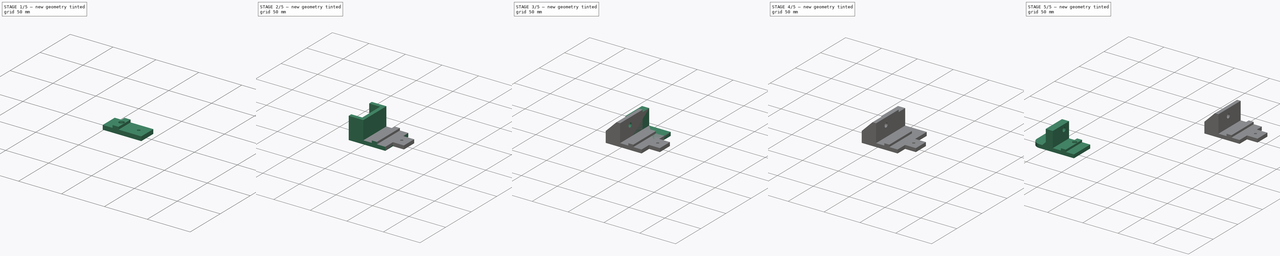
[diagram: build sequence overview — one tinted view per stage of 5, left to right]
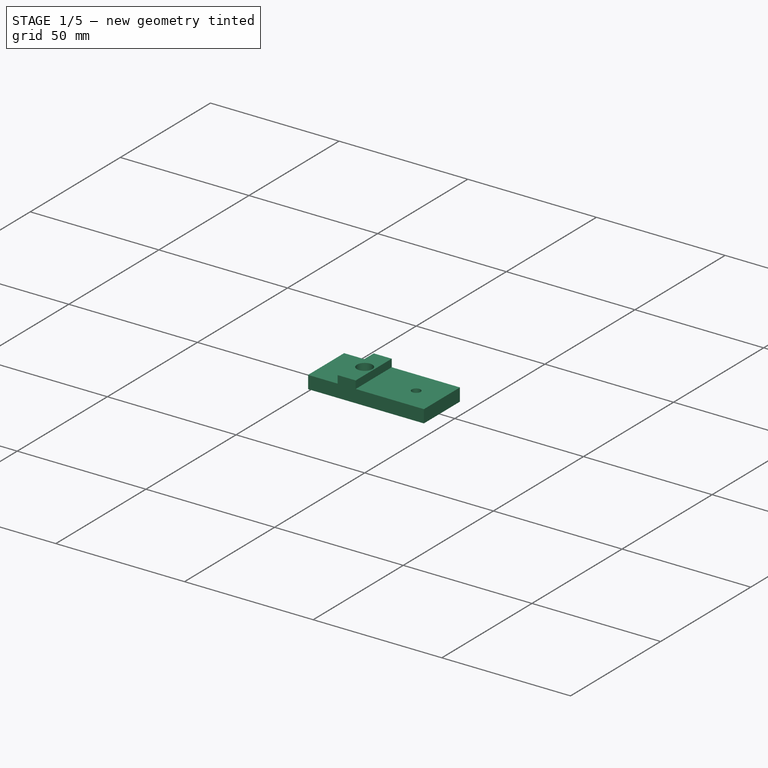
[diagram: stage 1 of 5 — iso view after this stage's code; geometry added in this stage tinted green]
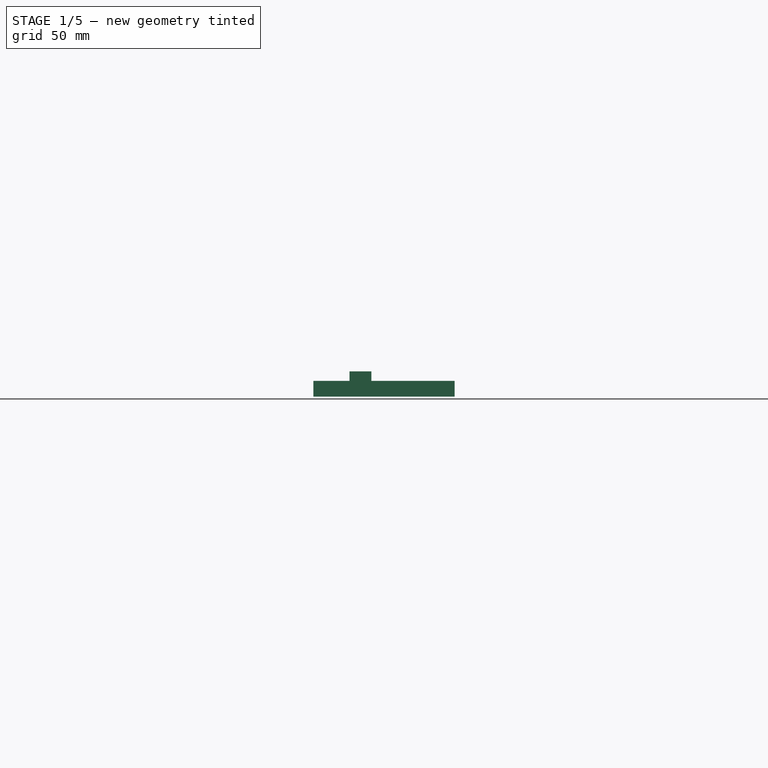
[diagram: stage 1 of 5 — front view after this stage's code; geometry added in this stage tinted green]
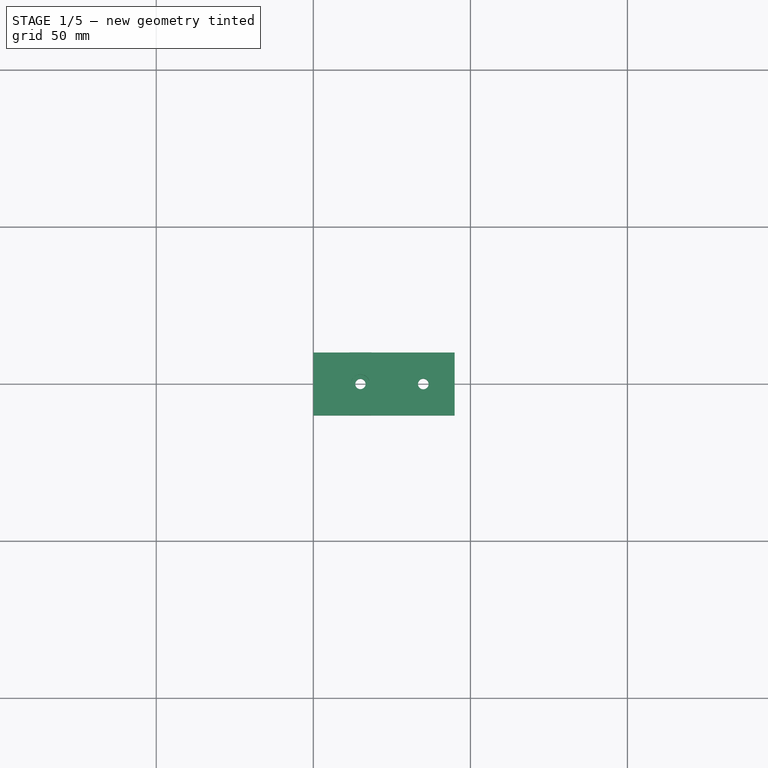
[diagram: stage 1 of 5 — top view after this stage's code; geometry added in this stage tinted green]
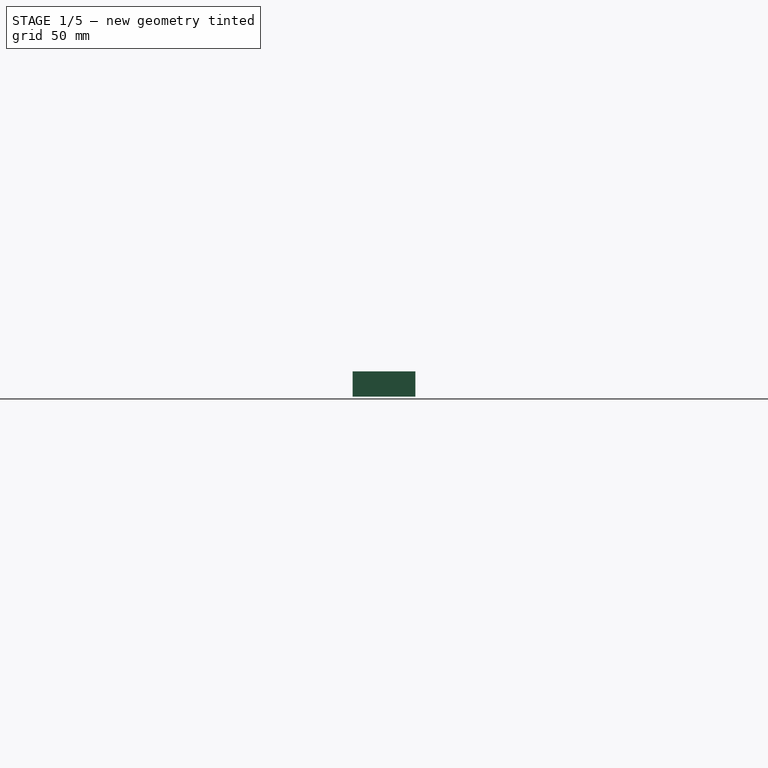
[diagram: stage 1 of 5 — right view after this stage's code; geometry added in this stage tinted green]
FCSTD DOCUMENT  (FreeCAD 0.18R)
Label: K-MINI-Enclosure-MiniBaseFixtures
License: All rights reserved
LicenseURL: http://en.wikipedia.org/wiki/All_rights_reserved
objects: Sketcher::SketchObject×12, PartDesign::Pad×8, PartDesign::Body×4, PartDesign::Pocket×2, PartDesign::Chamfer×2, PartDesign::Fillet×2, PartDesign::Hole×2, Part::Mirroring×1, PartDesign::FeatureBase×1, App::Part×1
note: 46 computed .brp shape members not serialized (recipe doc carries the construction recipe); baked Part::Feature solids carry a one-line shape summary decoded from their .brp

FEATURE [PartDesign::Body] Body037  label="MiniBaseFixtureR"
  Group = -> [Sketch024,Pad038,Sketch025,Pad039,Sketch027,Pad040,Sketch031,Pocket,Chamfer001]
  Origin = -> Origin044
  Placement = pos=(15,-55,0) rot=(0,0,1;3.14159rad)
  Tip = -> Chamfer001
FEATURE [Sketcher::SketchObject] Sketch
  MapMode = 5
  Support = -> [XY_Plane045]
  sketch-geometry (5):
    g0: LineSegment StartX=0 StartY=10 StartZ=0 EndX=45 EndY=10 EndZ=0
    g1: LineSegment StartX=45 StartY=10 StartZ=0 EndX=45 EndY=-10 EndZ=0
    g2: LineSegment StartX=45 StartY=-10 StartZ=0 EndX=0 EndY=-10 EndZ=0
    g3: LineSegment StartX=0 StartY=-10 StartZ=0 EndX=0 EndY=10 EndZ=0
    g4: Circle CenterX=35 CenterY=0 CenterZ=0 NormalX=0 NormalY=0 NormalZ=1 AngleXU=0 Radius=1.7
  constraints (14):
    c: Coincident(g0,g1)
    c: Coincident(g1,g2)
    c: Coincident(g2,g3)
    c: Coincident(g3,g0)
    c: Horizontal(g0)
    c: Horizontal(g2)
    c: Vertical(g3)
    c: PointOnObject(g4,g-1)
    c: Symmetric(g1,g0,g-1)
    c: DistanceY(g1,g1) = 20
    c: DistanceX(g0,g0) = 45
    c: Radius(g4) = 1.7
    c: DistanceX(g-1,g4) = 35
    c: PointOnObject(g0,g-2)
FEATURE [PartDesign::Pad] Pad
  Length = 5
  Length2 = 100
  Profile = -> Sketch
  Type = 0
FEATURE [Sketcher::SketchObject] Sketch032
  MapMode = 5
  Placement = pos=(0,0,5) rot=(0,0,1;0rad)
  Support = -> [Pad]
  sketch-geometry (4):
    g0: LineSegment StartX=11.5 StartY=10 StartZ=0 EndX=18.5 EndY=10 EndZ=0
    g1: LineSegment StartX=18.5 StartY=10 StartZ=0 EndX=18.5 EndY=-10 EndZ=0
    g2: LineSegment StartX=18.5 StartY=-10 StartZ=0 EndX=11.5 EndY=-10 EndZ=0
    g3: LineSegment StartX=11.5 StartY=-10 StartZ=0 EndX=11.5 EndY=10 EndZ=0
  constraints (11):
    c: Coincident(g0,g1)
    c: Coincident(g1,g2)
    c: Coincident(g2,g3)
    c: Coincident(g3,g0)
    c: Horizontal(g0)
    c: Horizontal(g2)
    c: Vertical(g1)
    c: Symmetric(g2,g0,g-1)
    c: DistanceX(g0,g0) = 7
    c: DistanceX(g-1,g0) = 11.5
    c: DistanceY(g1,g1) = 20
FEATURE [PartDesign::Pad] Pad042
  BaseFeature = -> Pad
  Length = 3
  Length2 = 100
  Profile = -> Sketch032
  Type = 0
FEATURE [Sketcher::SketchObject] Sketch033
  MapMode = 5
  Placement = pos=(0,0,8) rot=(0,0,1;0rad)
  Support = -> [Pad042]
  sketch-geometry (1):
    g0: Circle CenterX=15 CenterY=0 CenterZ=0 NormalX=0 NormalY=0 NormalZ=1 AngleXU=0 Radius=1.61617
  constraints (2):
    c: DistanceX(g-1,g0) = 15
    c: PointOnObject(g0,g-1)
FEATURE [PartDesign::Hole] Hole001
  BaseFeature = -> Pad042
  Depth = 25
  DepthType = 0
  Diameter = 3.3
  DrillPoint = 1
  DrillPointAngle = 118
  HoleCutCountersinkAngle = 90
  HoleCutDepth = 3
  HoleCutDiameter = 6
  HoleCutType = 1
  ModelActualThread = false
  Profile = -> Sketch033
  Tapered = false
  TaperedAngle = 90
  ThreadAngle = 0
  ThreadClass = 0
  ThreadCutOffInner = 0
  ThreadCutOffOuter = 0
  ThreadDirection = 0
  ThreadFit = 0
  ThreadPitch = 0
  ThreadSize = 0
  ThreadType = 0
  Threaded = false
FEATURE [PartDesign::Body] Body  label="MiniBaseFixtureFR"
  Group = -> [Sketch,Pad,Sketch032,Pad042,Sketch033,Hole001]
  Origin = -> Origin045
  Placement = pos=(15,-145,0) rot=(0,0,1;3.14159rad)
  Tip = -> Hole001
FEATURE [PartDesign::FeatureBase] Clone
  BaseFeature = -> Body
FEATURE [PartDesign::Body] Body038  label="MiniBaseFixtureRR"
  BaseFeature = -> Body
  Group = -> [Clone]
  Origin = -> Origin046
  Placement = pos=(15,70,0) rot=(0,0,1;3.14159rad)
  Tip = -> Clone
FEATURE [App::Part] Part  label="K-MINI-Enclosure-MiniBaseFixtures"
  Group = -> [Body037,Body036,Part__Mirroring,Body,Body038]
  Origin = -> Origin
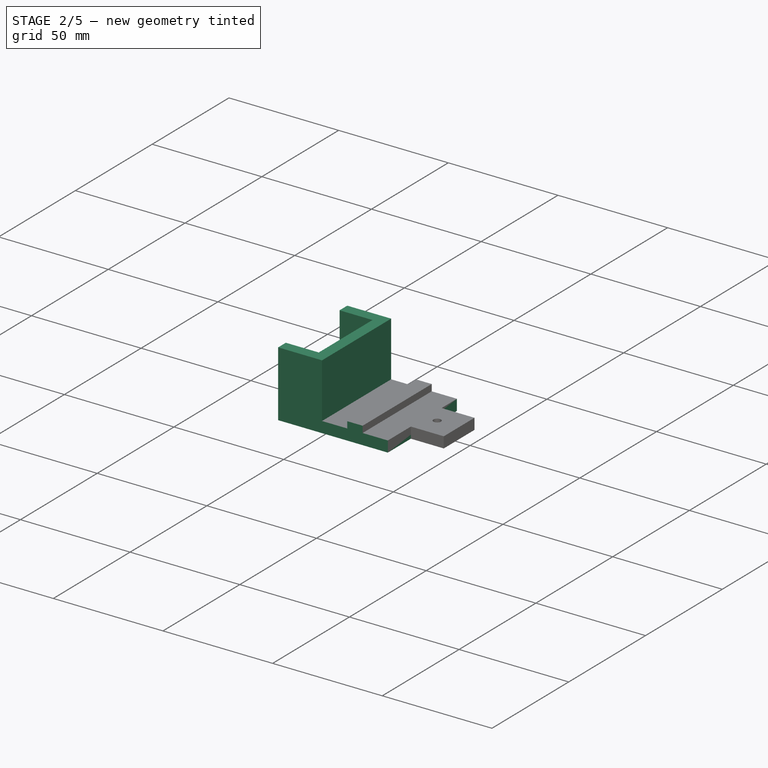
[diagram: stage 2 of 5 — iso view after this stage's code; geometry added in this stage tinted green]
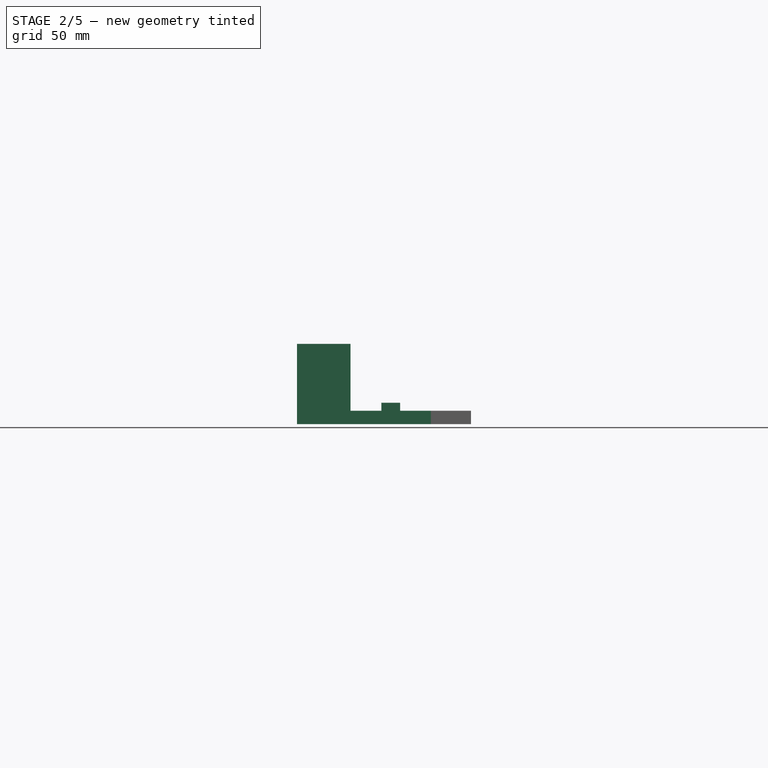
[diagram: stage 2 of 5 — front view after this stage's code; geometry added in this stage tinted green]
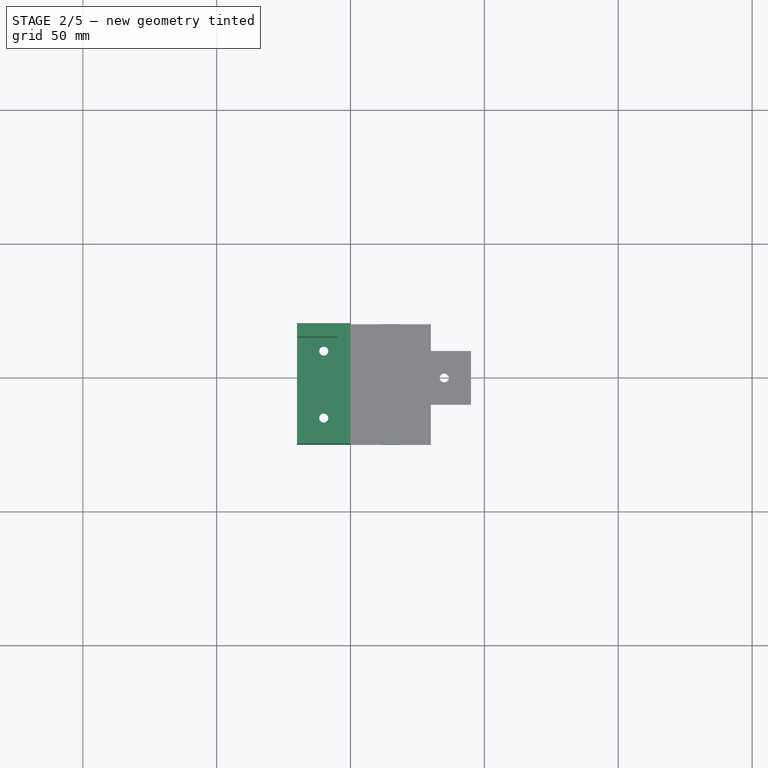
[diagram: stage 2 of 5 — top view after this stage's code; geometry added in this stage tinted green]
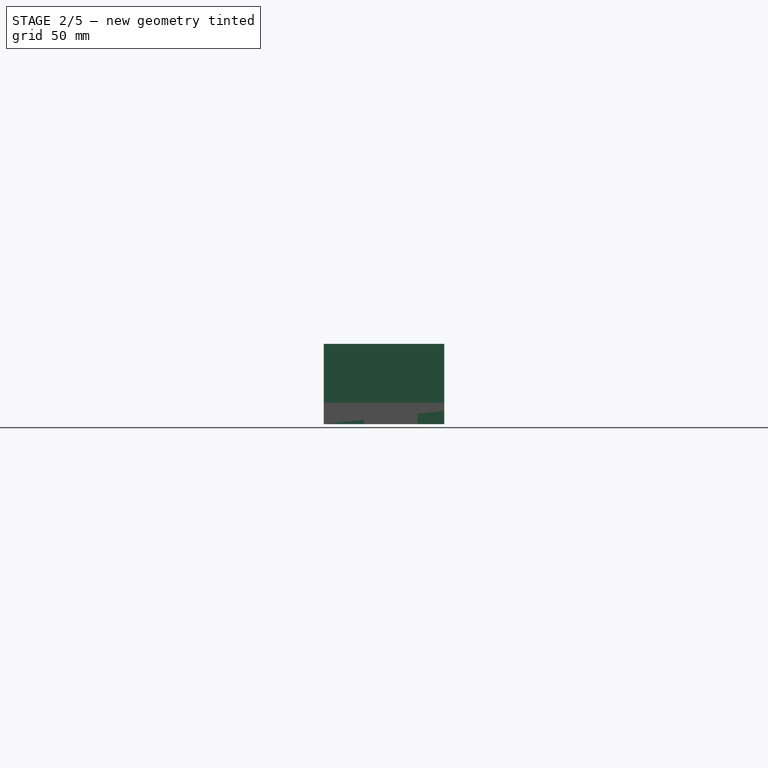
[diagram: stage 2 of 5 — right view after this stage's code; geometry added in this stage tinted green]
FEATURE [Sketcher::SketchObject] Sketch024
  MapMode = 5
  Support = -> [XY_Plane044]
  sketch-geometry (6):
    g0: LineSegment StartX=-20 StartY=20 StartZ=0 EndX=-20 EndY=-25 EndZ=0
    g1: Circle CenterX=-10 CenterY=-15 CenterZ=0 NormalX=0 NormalY=0 NormalZ=1 AngleXU=0 Radius=1.7
    g2: LineSegment StartX=-20 StartY=20 StartZ=0 EndX=30 EndY=20 EndZ=0
    g3: LineSegment StartX=30 StartY=20 StartZ=0 EndX=30 EndY=-25 EndZ=0
    g4: LineSegment StartX=30 StartY=-25 StartZ=0 EndX=-20 EndY=-25 EndZ=0
    g5: Circle CenterX=-10 CenterY=10 CenterZ=0 NormalX=0 NormalY=0 NormalZ=1 AngleXU=0 Radius=1.7
  constraints (18):
    c: Radius(g1) = 1.7
    c: Vertical(g0)
    c: DistanceX(g0,g-1) = 20
    c: DistanceX(g0,g1) = 10
    c: Coincident(g2,g3)
    c: Coincident(g3,g4)
    c: Vertical(g3)
    c: Horizontal(g4)
    c: DistanceX(g-1,g2) = 30
    c: Horizontal(g2)
    c: DistanceY(g-1,g0) = 20
    c: DistanceY(g0,g-1) = 25
    c: Equal(g1,g5)
    c: Vertical(g1,g5)
    c: DistanceY(g0,g1) = 10
    c: DistanceY(g5,g0) = 10
    c: Coincident(g0,g4)
    c: Coincident(g0,g2)
FEATURE [PartDesign::Pad] Pad038
  Length = 5
  Length2 = 100
  Profile = -> Sketch024
  Type = 0
FEATURE [PartDesign::Pad] Pad039
  BaseFeature = -> Pad038
  Length = 25
  Length2 = 100
  Profile = -> Sketch025
  Type = 0
FEATURE [PartDesign::Pad] Pad040
  BaseFeature = -> Pad039
  Length = 3
  Length2 = 100
  Profile = -> Sketch027
  Type = 0
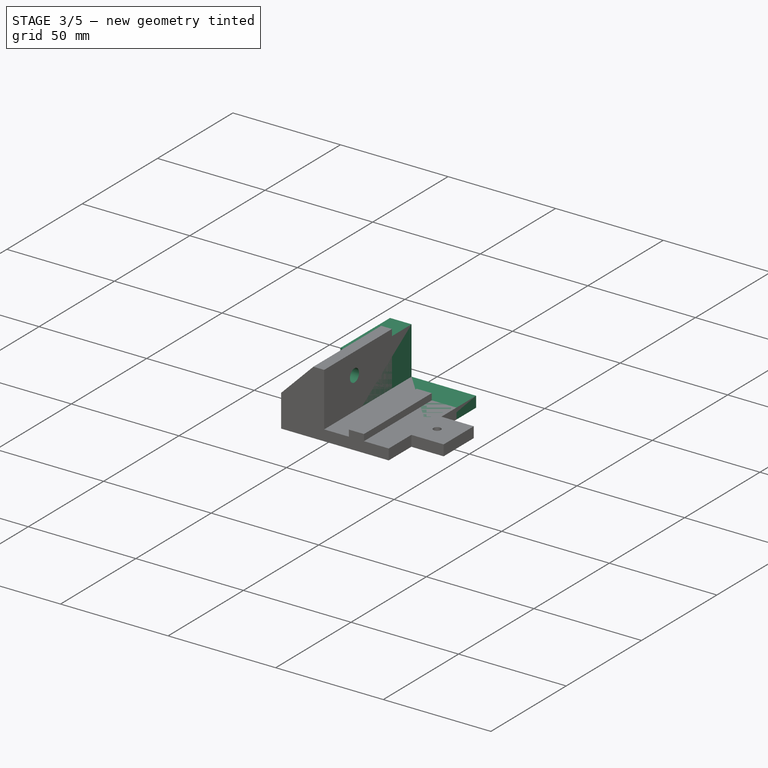
[diagram: stage 3 of 5 — iso view after this stage's code; geometry added in this stage tinted green]
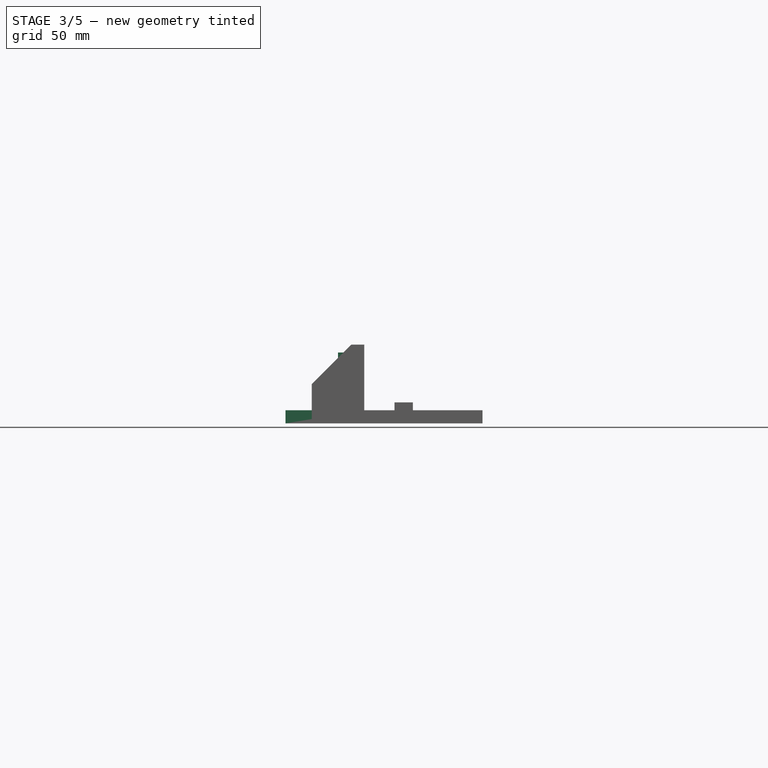
[diagram: stage 3 of 5 — front view after this stage's code; geometry added in this stage tinted green]
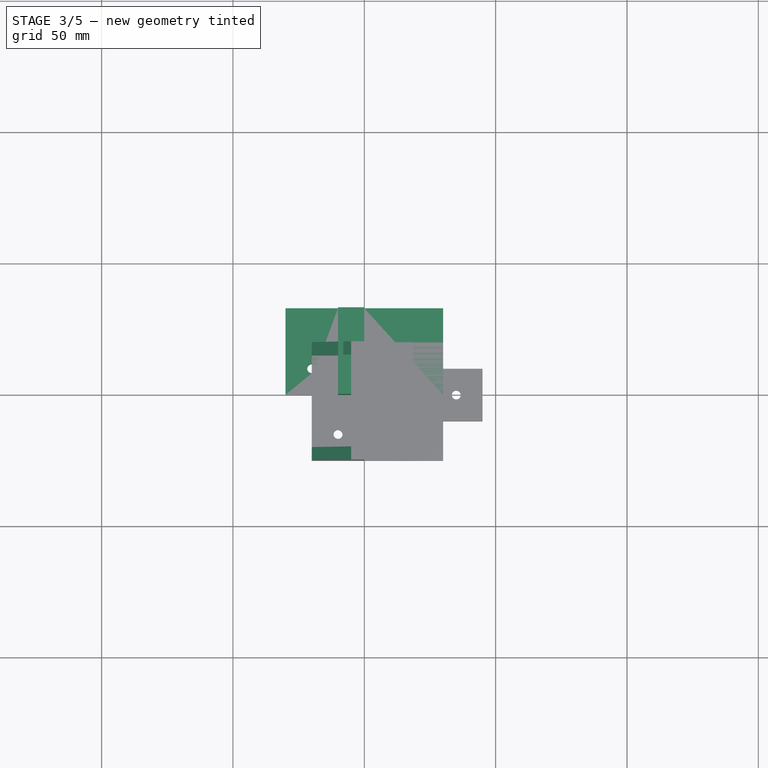
[diagram: stage 3 of 5 — top view after this stage's code; geometry added in this stage tinted green]
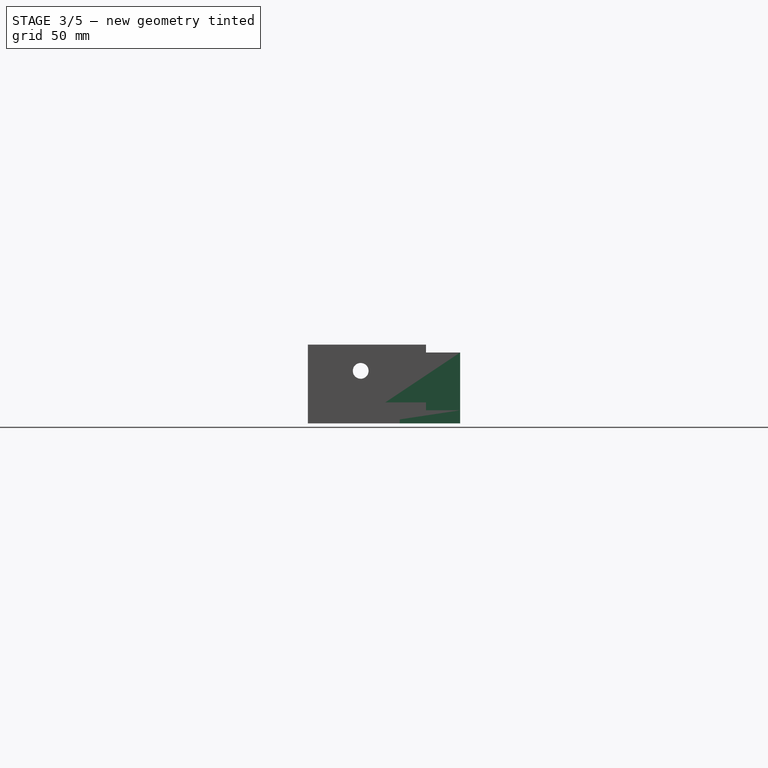
[diagram: stage 3 of 5 — right view after this stage's code; geometry added in this stage tinted green]
FEATURE [Sketcher::SketchObject] Sketch021
  MapMode = 5
  Support = -> [XY_Plane043]
  sketch-geometry (5):
    g0: LineSegment StartX=-30 StartY=33 StartZ=0 EndX=30 EndY=33 EndZ=0
    g1: LineSegment StartX=30 StartY=33 StartZ=0 EndX=30 EndY=0 EndZ=0
    g2: LineSegment StartX=30 StartY=0 StartZ=0 EndX=-30 EndY=0 EndZ=0
    g3: LineSegment StartX=-30 StartY=0 StartZ=0 EndX=-30 EndY=33 EndZ=0
    g4: Circle CenterX=-20 CenterY=10 CenterZ=0 NormalX=0 NormalY=0 NormalZ=1 AngleXU=0 Radius=1.7
  constraints (14):
    c: Coincident(g0,g1)
    c: Coincident(g1,g2)
    c: Coincident(g2,g3)
    c: Coincident(g3,g0)
    c: Horizontal(g0)
    c: Vertical(g1)
    c: Vertical(g3)
    c: PointOnObject(g-1,g2)
    c: DistanceY(g3,g3) = 33
    c: Symmetric(g2,g1,g-2)
    c: DistanceX(g2,g2) = 60
    c: Radius(g4) = 1.7
    c: DistanceX(g2,g4) = 10
    c: DistanceY(g2,g4) = 10
FEATURE [PartDesign::Pad] Pad035
  Length = 5
  Length2 = 100
  Profile = -> Sketch021
  Type = 0
FEATURE [Sketcher::SketchObject] Sketch022
  MapMode = 5
  Placement = pos=(0,0,5) rot=(0,0,1;0rad)
  Support = -> [Pad035]
  sketch-geometry (4):
    g0: LineSegment StartX=0 StartY=0 StartZ=0 EndX=-10 EndY=0 EndZ=0
    g1: LineSegment StartX=-10 StartY=0 StartZ=0 EndX=-10 EndY=33 EndZ=0
    g2: LineSegment StartX=-10 StartY=33 StartZ=0 EndX=0 EndY=33 EndZ=0
    g3: LineSegment StartX=0 StartY=33 StartZ=0 EndX=0 EndY=0 EndZ=0
  constraints (11):
    c: Coincident(g0,g1)
    c: Coincident(g1,g2)
    c: Coincident(g2,g3)
    c: Coincident(g3,g0)
    c: Horizontal(g0)
    c: Horizontal(g2)
    c: Vertical(g1)
    c: Vertical(g3)
    c: DistanceY(g1,g1) = 33
    c: Coincident(g0,g-1)
    c: DistanceX(g0,g0) = 10
FEATURE [PartDesign::Pad] Pad036
  BaseFeature = -> Pad035
  Length = 22
  Length2 = 100
  Profile = -> Sketch022
  Type = 0
FEATURE [Sketcher::SketchObject] Sketch031
  MapMode = 5
  Placement = pos=(-5,0,0) rot=(0.57735,-0.57735,-0.57735;2.0944rad)
  sketch-geometry (1):
    g0: Circle CenterX=4.87336 CenterY=20 CenterZ=0 NormalX=0 NormalY=0 NormalZ=1 AngleXU=0 Radius=3
  constraints (2):
    c: Radius(g0) = 3
    c: DistanceY(g-1,g0) = 20
FEATURE [PartDesign::Pocket] Pocket
  BaseFeature = -> Pad040
  Length = 5
  Length2 = 100
  Profile = -> Sketch031
  Type = 0
FEATURE [PartDesign::Chamfer] Chamfer001
  Base = -> Pocket [Edge33,Edge41]
  BaseFeature = -> Pocket
  Size = 15
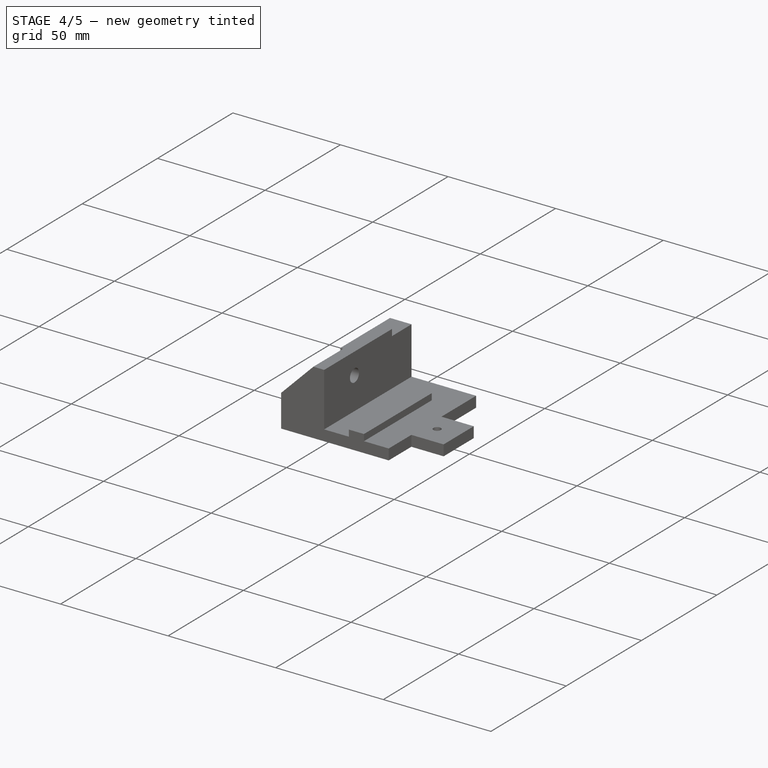
[diagram: stage 4 of 5 — iso view after this stage's code; geometry added in this stage tinted green]
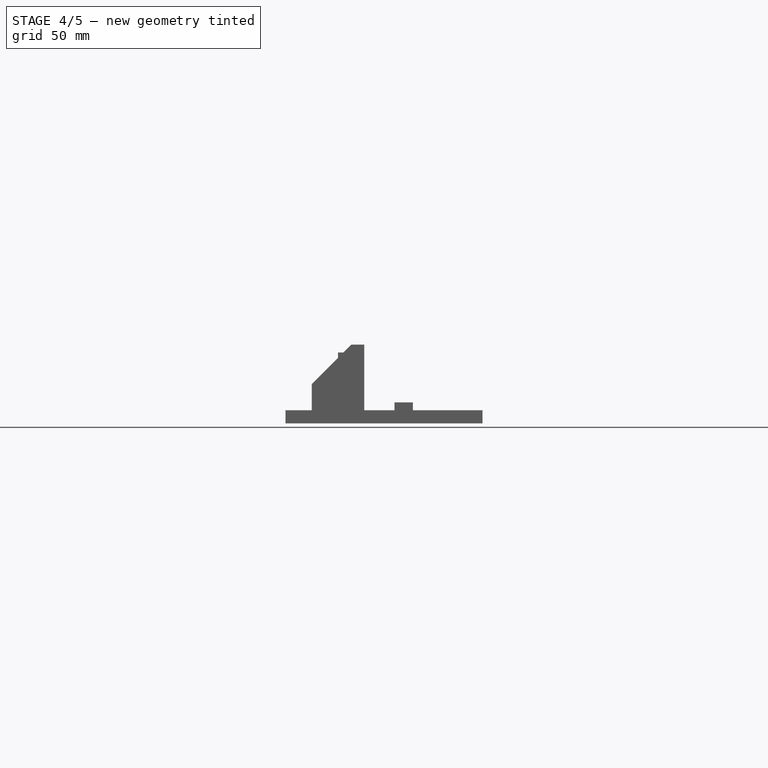
[diagram: stage 4 of 5 — front view after this stage's code; geometry added in this stage tinted green]
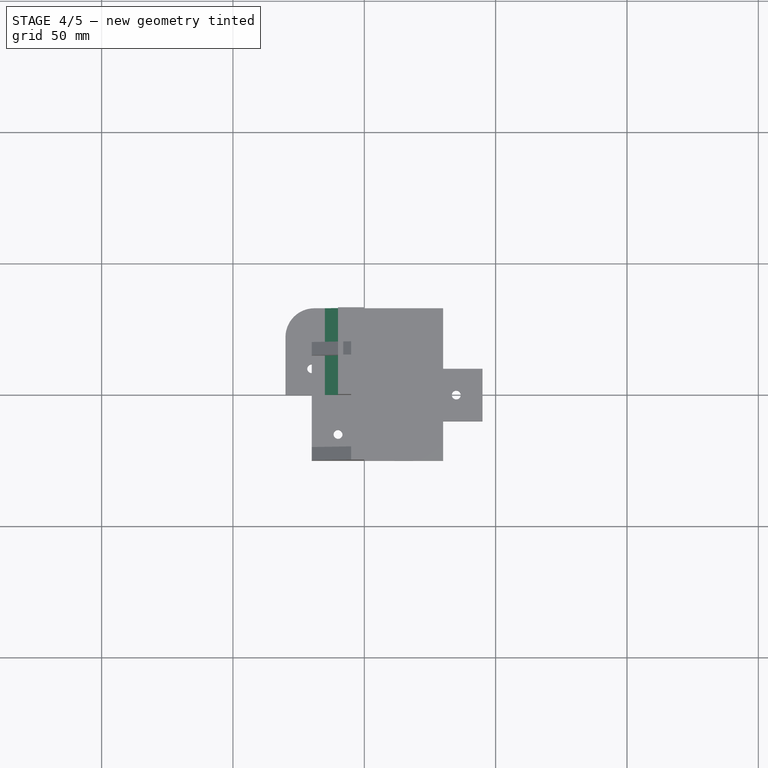
[diagram: stage 4 of 5 — top view after this stage's code; geometry added in this stage tinted green]
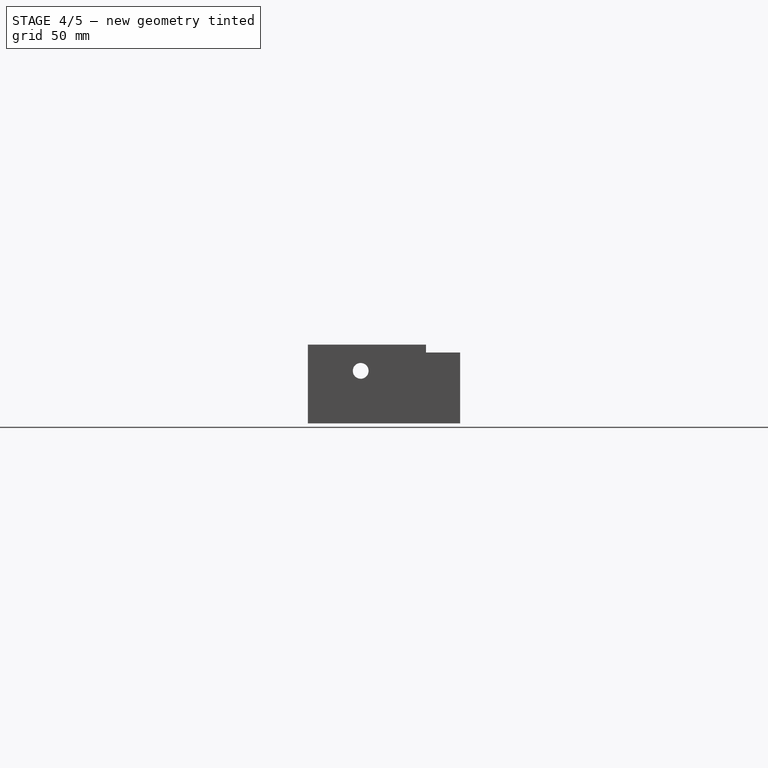
[diagram: stage 4 of 5 — right view after this stage's code; geometry added in this stage tinted green]
FEATURE [Sketcher::SketchObject] Sketch023
  MapMode = 5
  Placement = pos=(-10,0,0) rot=(0.57735,-0.57735,-0.57735;2.0944rad)
  Support = -> [Pad036]
  sketch-geometry (1):
    g0: Circle CenterX=-10 CenterY=20 CenterZ=0 NormalX=0 NormalY=0 NormalZ=1 AngleXU=0 Radius=3
  constraints (3):
    c: Radius(g0) = 3
    c: DistanceY(g-1,g0) = 20
    c: DistanceX(g0,g-1) = 10
FEATURE [PartDesign::Pocket] Pocket004
  BaseFeature = -> Pad036
  Length = 10
  Length2 = 100
  Profile = -> Sketch023
  Type = 0
FEATURE [PartDesign::Chamfer] Chamfer
  Base = -> Pocket004 [Edge16]
  BaseFeature = -> Pocket004
  Size = 5
FEATURE [PartDesign::Fillet] Fillet
  Base = -> Chamfer [Edge3]
  BaseFeature = -> Chamfer
  Radius = 11
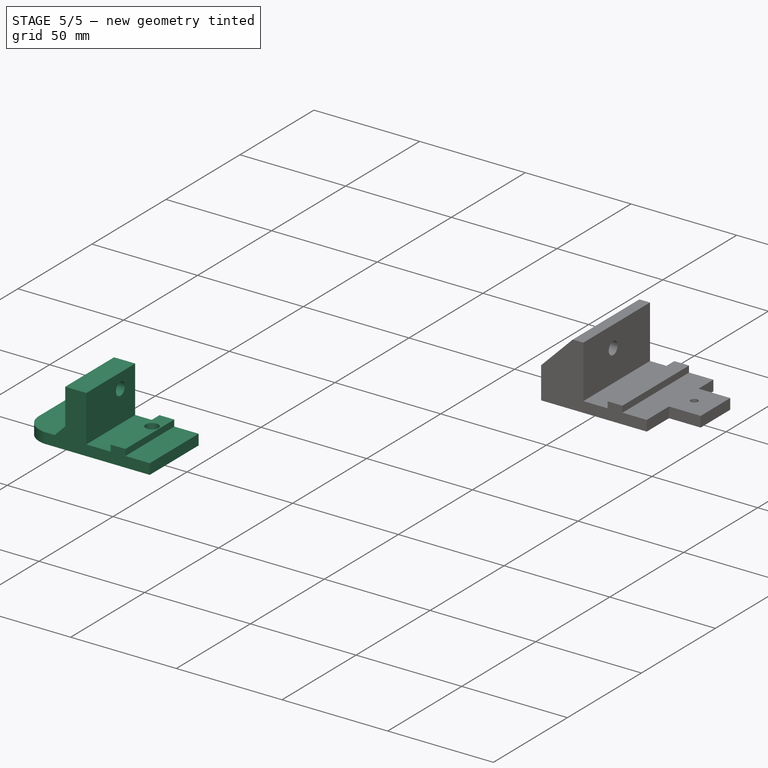
[diagram: stage 5 of 5 — iso view after this stage's code; geometry added in this stage tinted green]
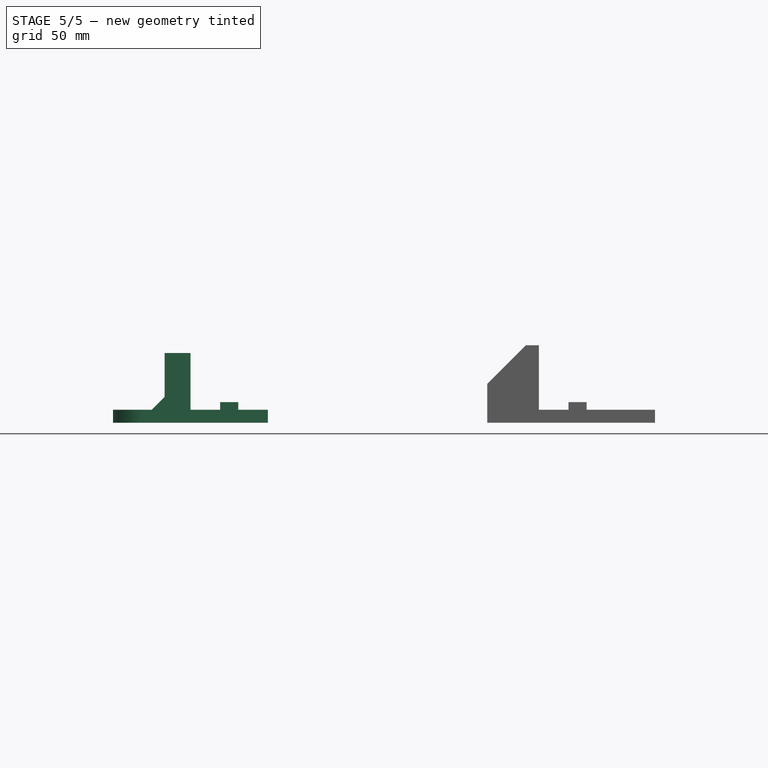
[diagram: stage 5 of 5 — front view after this stage's code; geometry added in this stage tinted green]
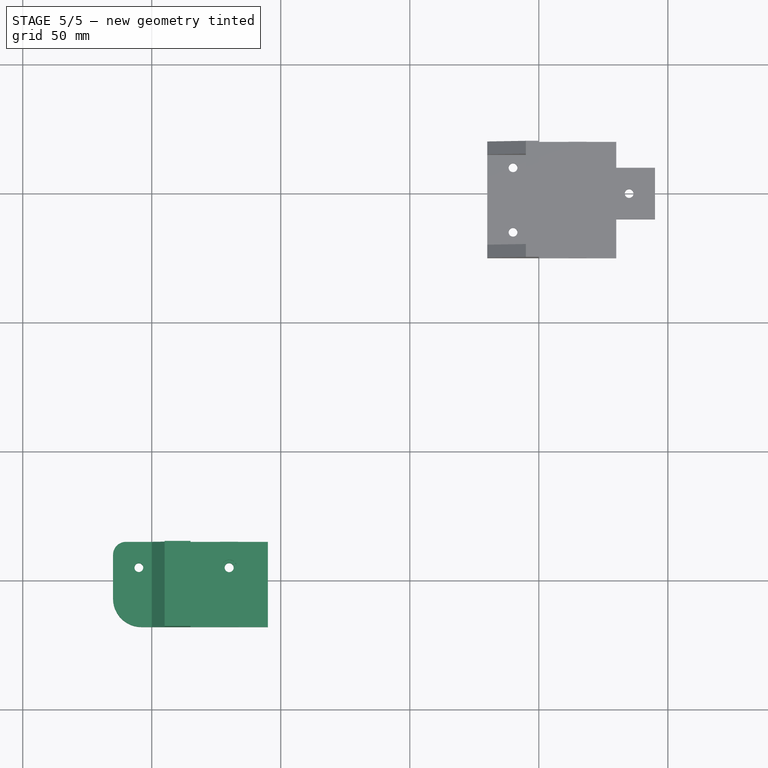
[diagram: stage 5 of 5 — top view after this stage's code; geometry added in this stage tinted green]
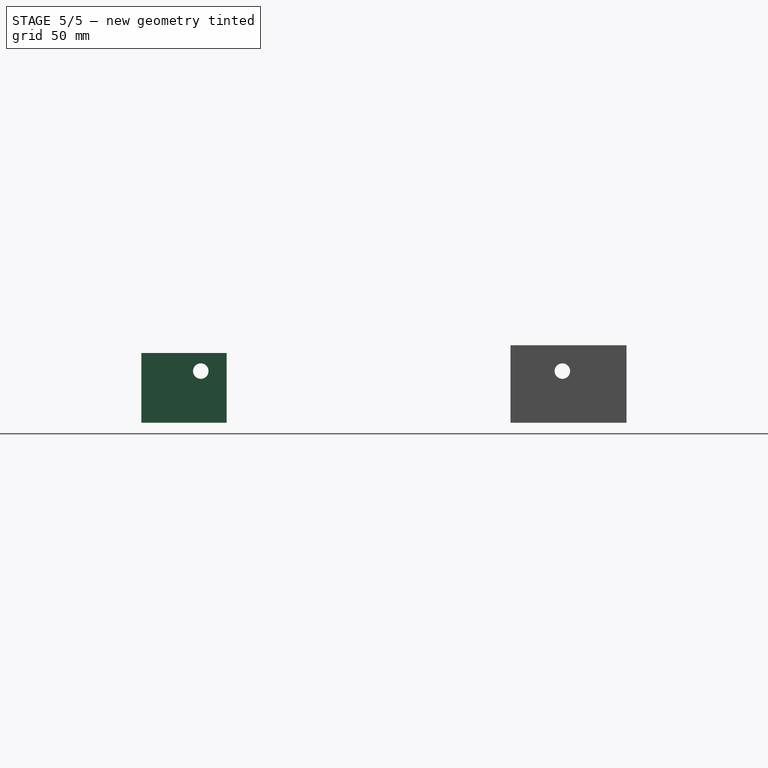
[diagram: stage 5 of 5 — right view after this stage's code; geometry added in this stage tinted green]
FEATURE [PartDesign::Fillet] Fillet001
  Base = -> Fillet [Edge27]
  BaseFeature = -> Fillet
  Radius = 5
FEATURE [Sketcher::SketchObject] Sketch025
  MapMode = 5
  Placement = pos=(0,0,5) rot=(0,0,1;0rad)
  sketch-geometry (8):
    g0: LineSegment StartX=-5 StartY=-20 StartZ=0 EndX=-20 EndY=-20 EndZ=0
    g1: LineSegment StartX=-20 StartY=-20 StartZ=0 EndX=-20 EndY=-25 EndZ=0
    g2: LineSegment StartX=-20 StartY=-25 StartZ=0 EndX=0 EndY=-25 EndZ=0
    g3: LineSegment StartX=0 StartY=-25 StartZ=0 EndX=0 EndY=20 EndZ=0
    g4: LineSegment StartX=0 StartY=20 StartZ=0 EndX=-20 EndY=20 EndZ=0
    g5: LineSegment StartX=-20 StartY=20 StartZ=0 EndX=-20 EndY=15 EndZ=0
    g6: LineSegment StartX=-20 StartY=15 StartZ=0 EndX=-5 EndY=15 EndZ=0
    g7: LineSegment StartX=-5 StartY=-20 StartZ=0 EndX=-5 EndY=15 EndZ=0
  constraints (24):
    c: Coincident(g0,g1)
    c: Coincident(g1,g2)
    c: Coincident(g2,g3)
    c: Coincident(g4,g5)
    c: Coincident(g5,g6)
    c: Horizontal(g6)
    c: Horizontal(g0)
    c: Horizontal(g2)
    c: Horizontal(g4)
    c: Vertical(g1)
    c: Vertical(g5)
    c: Vertical(g3)
    c: Vertical(g5,g0)
    c: DistanceX(g4,g4) = 20
    c: Vertical(g7)
    c: Equal(g5,g1)
    c: DistanceX(g7,g3) = 5
    c: DistanceY(g-1,g4) = 20
    c: Coincident(g7,g0)
    c: Coincident(g7,g6)
    c: DistanceY(g1,g-1) = 25
    c: DistanceY(g1,g1) = 5
    c: Coincident(g4,g3)
    c: PointOnObject(g-1,g3)
FEATURE [Sketcher::SketchObject] Sketch027
  MapMode = 5
  Placement = pos=(0,0,5) rot=(0,0,1;0rad)
  sketch-geometry (4):
    g0: LineSegment StartX=11.5 StartY=20 StartZ=0 EndX=18.5 EndY=20 EndZ=0
    g1: LineSegment StartX=18.5 StartY=20 StartZ=0 EndX=18.5 EndY=-25 EndZ=0
    g2: LineSegment StartX=18.5 StartY=-25 StartZ=0 EndX=11.5 EndY=-25 EndZ=0
    g3: LineSegment StartX=11.5 StartY=-25 StartZ=0 EndX=11.5 EndY=20 EndZ=0
  constraints (12):
    c: Coincident(g0,g1)
    c: Coincident(g1,g2)
    c: Coincident(g2,g3)
    c: Coincident(g3,g0)
    c: Horizontal(g0)
    c: Horizontal(g2)
    c: Vertical(g1)
    c: Vertical(g3)
    c: DistanceX(g-1,g2) = 11.5
    c: DistanceX(g2,g2) = 7
    c: DistanceY(g-1,g0) = 20
    c: DistanceY(g2,g-1) = 25
FEATURE [Sketcher::SketchObject] Sketch028
  MapMode = 5
  Placement = pos=(0,0,5) rot=(0,0,1;0rad)
  Support = -> [Fillet001]
  sketch-geometry (4):
    g0: LineSegment StartX=11.5 StartY=0 StartZ=0 EndX=18.5 EndY=0 EndZ=0
    g1: LineSegment StartX=18.5 StartY=0 StartZ=0 EndX=18.5 EndY=33 EndZ=0
    g2: LineSegment StartX=18.5 StartY=33 StartZ=0 EndX=11.5 EndY=33 EndZ=0
    g3: LineSegment StartX=11.5 StartY=33 StartZ=0 EndX=11.5 EndY=0 EndZ=0
  constraints (12):
    c: Coincident(g0,g1)
    c: Coincident(g1,g2)
    c: Coincident(g2,g3)
    c: Coincident(g3,g0)
    c: Horizontal(g0)
    c: Horizontal(g2)
    c: Vertical(g1)
    c: Vertical(g3)
    c: DistanceX(g-1,g0) = 11.5
    c: DistanceX(g0,g0) = 7
    c: PointOnObject(g0,g-1)
    c: DistanceY(g1,g1) = 33
FEATURE [PartDesign::Pad] Pad041
  BaseFeature = -> Fillet001
  Length = 3
  Length2 = 100
  Profile = -> Sketch028
  Type = 0
FEATURE [Sketcher::SketchObject] Sketch030
  MapMode = 5
  Placement = pos=(0,0,8) rot=(0,0,1;0rad)
  Support = -> [Pad041]
  sketch-geometry (1):
    g0: Circle CenterX=15 CenterY=10 CenterZ=0 NormalX=0 NormalY=0 NormalZ=1 AngleXU=0 Radius=2.31284
  constraints (2):
    c: DistanceX(g-1,g0) = 15
    c: DistanceY(g-1,g0) = 10
FEATURE [PartDesign::Hole] Hole
  BaseFeature = -> Pad041
  Depth = 25
  DepthType = 1
  Diameter = 3.5
  DrillPoint = 0
  DrillPointAngle = 118
  HoleCutCountersinkAngle = 90
  HoleCutDepth = 3
  HoleCutDiameter = 6
  HoleCutType = 1
  ModelActualThread = false
  Profile = -> Sketch030
  Tapered = false
  TaperedAngle = 90
  ThreadAngle = 0
  ThreadClass = 0
  ThreadCutOffInner = 0
  ThreadCutOffOuter = 0
  ThreadDirection = 0
  ThreadFit = 0
  ThreadPitch = 0
  ThreadSize = 0
  ThreadType = 0
  Threaded = false
FEATURE [PartDesign::Body] Body036  label="MiniBaseFixtureBL"
  Group = -> [Sketch021,Pad035,Sketch022,Pad036,Sketch023,Pocket004,Chamfer,Fillet,Fillet001,Sketch028,Pad041,Sketch030,Hole]
  Origin = -> Origin043
  Placement = pos=(-135,60,0) rot=(0,0,1;0rad)
  Tip = -> Hole
FEATURE [Part::Mirroring] Part__Mirroring  label="MiniBaseFixtureFL"
  Base = (-135,-9.53674e-07,-13.5)
  Normal = (0,1,-1.19209e-07)
  Placement = pos=(0,-75,0) rot=(0,0,1;0rad)
  Source = -> Body036
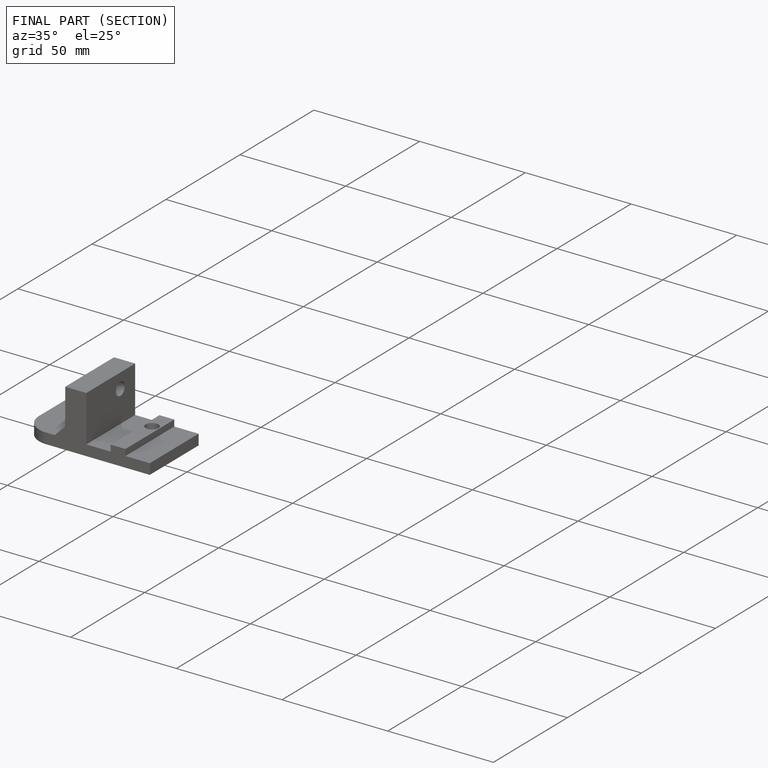
[diagram: finished part — half-section view (interior)]
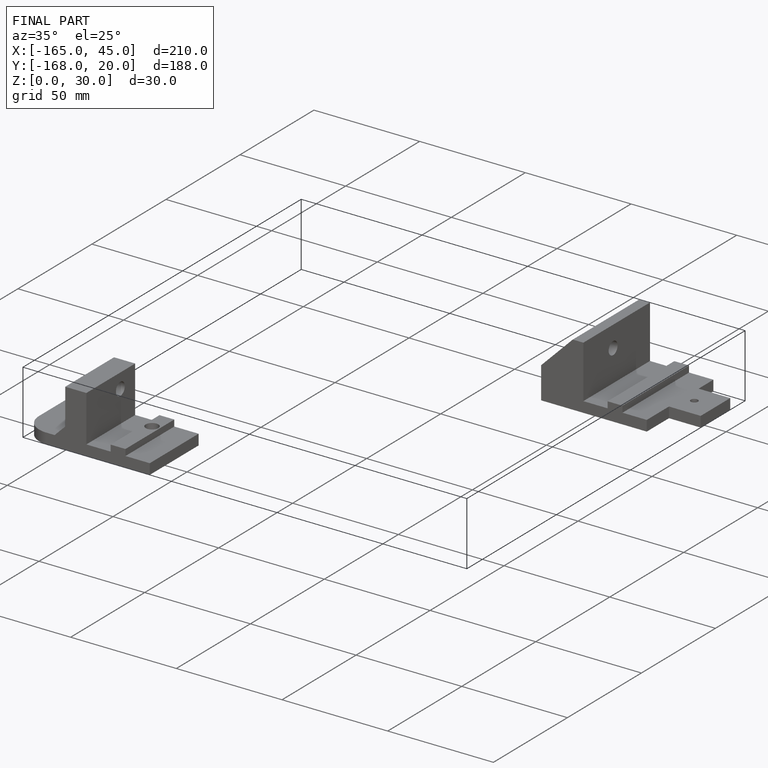
[diagram: finished part — iso view with bounding-box wireframe]
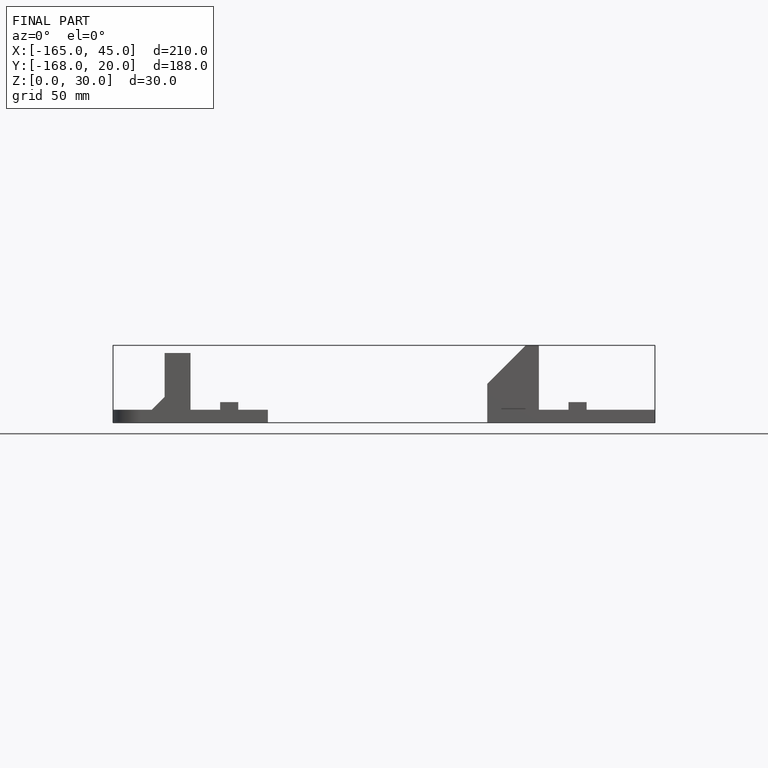
[diagram: finished part — front view with bounding-box wireframe]
